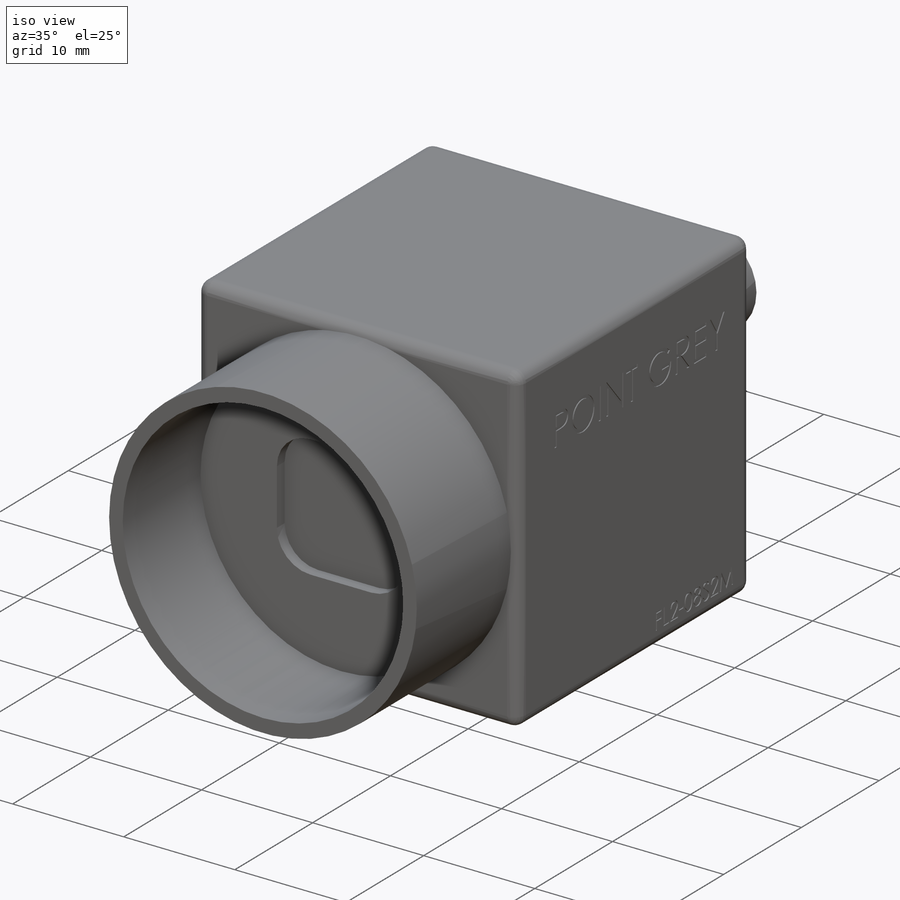
[diagram: iso view]
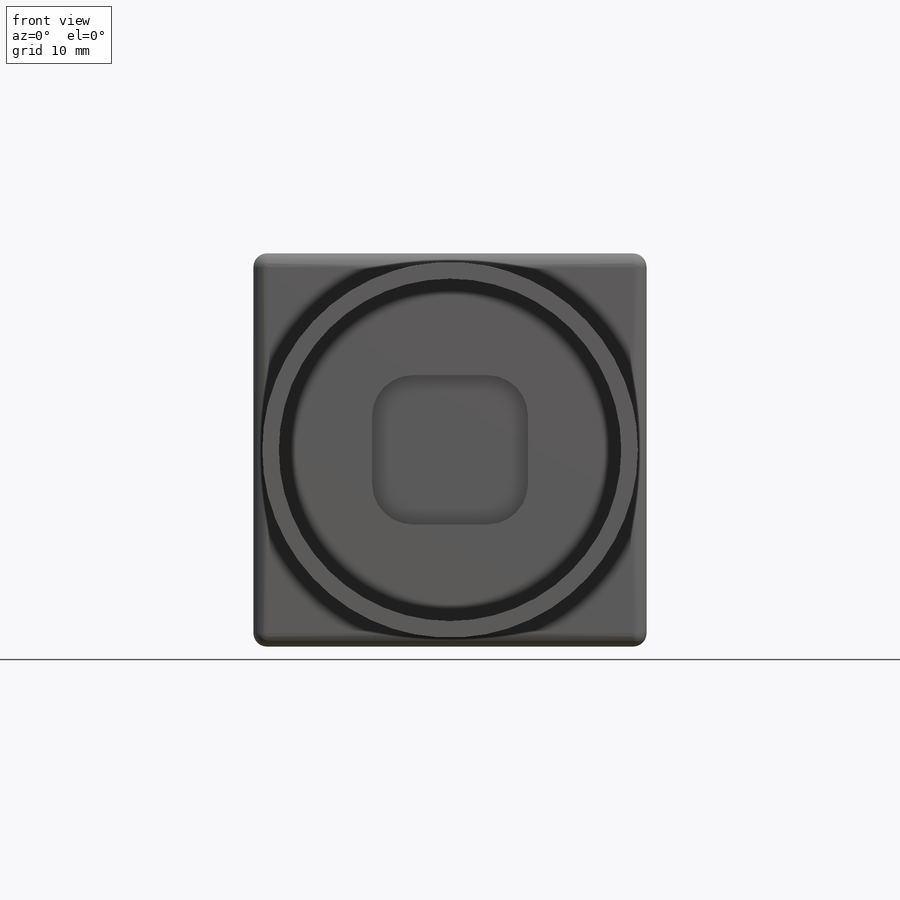
[diagram: front view]
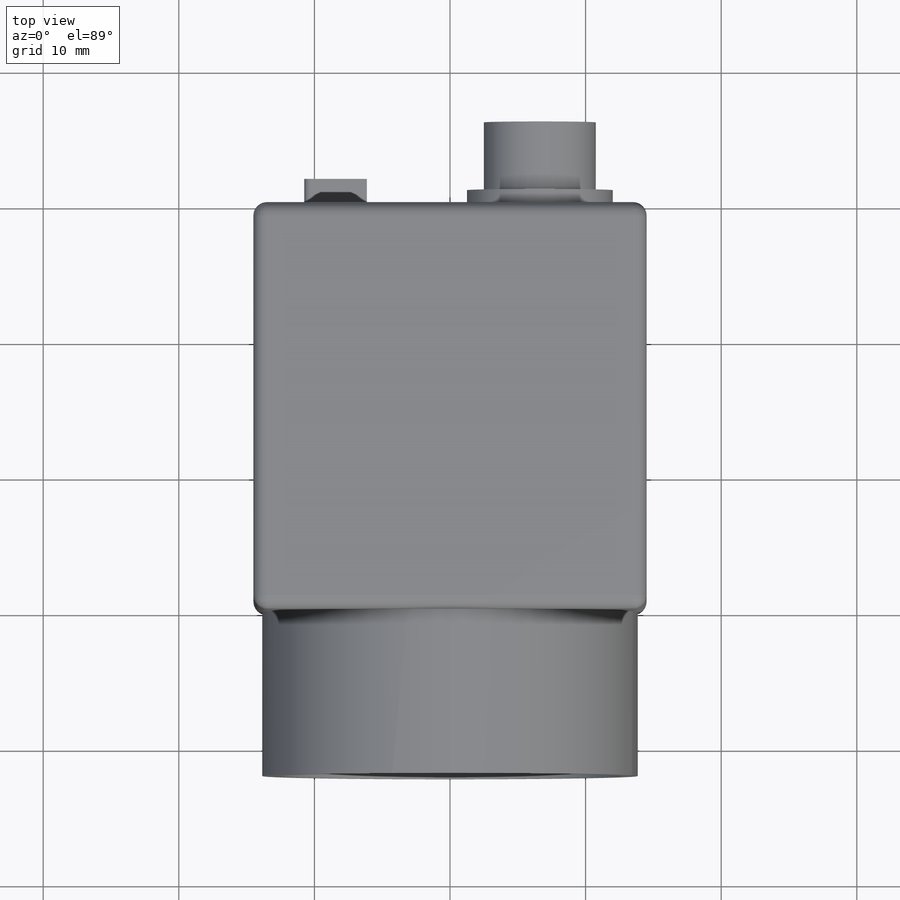
[diagram: top view]
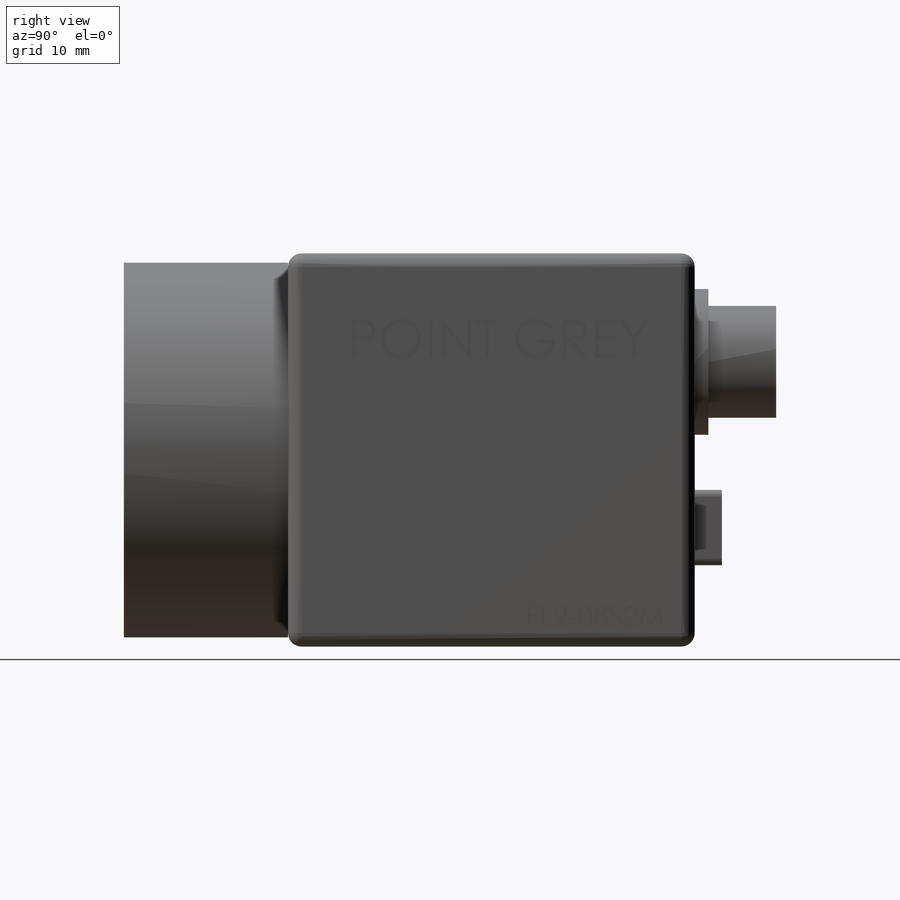
[diagram: right view]
SOLIDWORKS PART (.sldprt)
format: sldprt  version: not decoded by parser v0  size: 1,209,344 bytes
history: native  units: mm
features: sketch x22, cut_extrude x12, extrude x5, hole x2, thread x2, material x1, fillet x1 (+12 scaffold rows collapsed)
feature tree (57):
  scaffold x12  (default folders/planes/origin — collapsed)
  material  "Material <not specified>"
  sketch  "Sketch1"  dims[D3=1.0mm D1=29.0mm D2=29.0mm]
  extrude  "Extrude1"  Depth=30mm
  fillet  "Fillet1"  Radius=1mm
  sketch  "Sketch2"  dims[D1=27.7mm]
  extrude  "Extrude2"  Depth=12.1mm
  sketch  "Sketch3"  dims[D1=11.4mm D2=9.0mm D3=4.5mm D4=7.63mm D5=3.75mm]
  cut_extrude  "Extrude3"  Depth=5.55mm
  sketch  "Sketch4"
  cut_extrude  "Extrude4"  Depth=5.55mm
  sketch  "Sketch5"
  cut_extrude  "Extrude5"  Depth=0.2mm
  sketch  "Sketch6"
  cut_extrude  "Extrude6"  Depth=5.5mm
  sketch  "Sketch7"  dims[D1=10.75mm D2=7.875mm D3=8.0mm]
  extrude  "Extrude7"  Depth=1mm
  sketch  "Sketch8"  dims[D1=8.25mm]
  extrude  "Extrude8"  Depth=5mm
  sketch  "Sketch9"
  cut_extrude  "Extrude9"  Depth=6mm
  sketch  "Sketch10"
  cut_extrude  "Extrude10"  Depth=0.5mm
  sketch  "Sketch11"
  cut_extrude  "Extrude11"  Depth=4mm
  sketch  "Sketch12"  dims[c1.D1=~2.843355mm c1.D2=3.0mm c2.D1=6.0mm]
  cut_extrude  "Extrude12"  Depth=0.1mm
  sketch  "Sketch13"
  cut_extrude  "Extrude13"  Depth=0.1mm
  sketch  "Sketch15"  dims[D1=25.25mm]
  cut_extrude  "Extrude14"  Depth=10mm
  sketch  "Sketch16"
  cut_extrude  "Extrude15"  Depth=0.005mm
  sketch  "Sketch17"  dims[D1=20.0mm D2=23.7mm D3=15.1mm D4=4.5mm D5=12.0mm D6=22.0mm D7=16.1mm]
  hole  "M3x0.5 Tapped Hole1"  Diameter=2.5mm Depth=4mm
  sketch  "3DSketch1"
  sketch  "Sketch18"  dims[hole-wizard template sketch: 47 standard entries collapsed; hole parameters kept: c15.Tap Drill Depth=4.0mm c15.D3=~14.816244mm c15.Drill Angle=118.0deg]
  thread  "Hole Thread1"  Diameter=2.5mm  [1 undecoded]
  hole  "M2x0.4 Tapped Hole1"  Diameter=1.6mm Depth=3.2mm
  sketch  "3DSketch2"
  sketch  "Sketch19"  dims[hole-wizard template sketch: 47 standard entries collapsed; hole parameters kept: c15.Tap Drill Depth=3.2mm c15.D3=~14.816244mm c15.Drill Angle=118.0deg c15.D1=2.0mm c15.D2=2.0mm c16.D1=2.0mm c16.D2=2.0mm c17.D1=2.0mm c17.D2=2.0mm c18.D1=2.0mm c18.D2=2.0mm]
  sketch  "Sketch20"  dims[D4=0.5mm D1=21.5mm D2=5.56mm D3=6.0mm]
  extrude  "Extrude16"  Depth=2mm
  sketch  "Sketch21"  dims[D1=3.0mm]
  cut_extrude  "Extrude17"  Depth=1mm
  thread  "Optical Coordinate System"  [2 undecoded]
decode coverage: 33 of 44 modeling features carry decoded parameters
note: ~ marks probable driven/reference dimensions
note: 3 parameter values undecoded
note: suppression state not decoded; provenance and decode notes live in map.json
